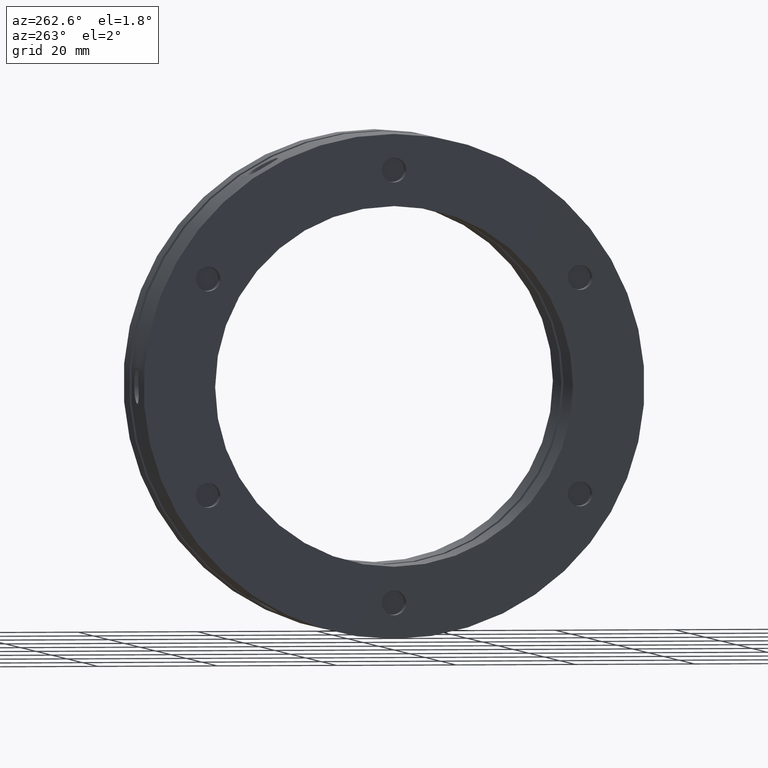
[diagram: clean part render]
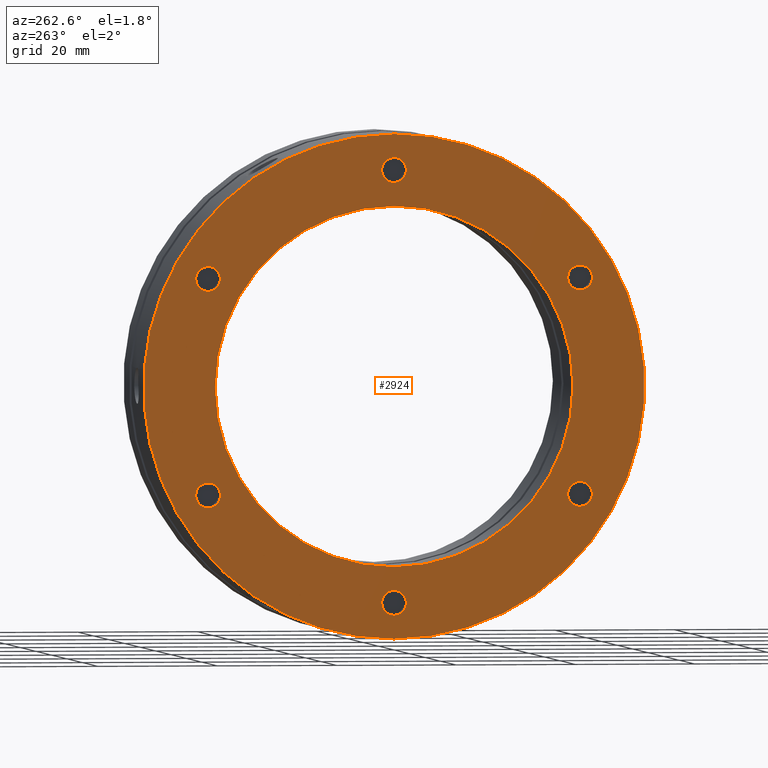
[diagram: same view with one face highlighted and labeled with its STEP entity id]
A machine part, auxiliary view. The second image highlights one B-rep face of the part: STEP entity #2924.
In plain terms, the highlighted planar face has unit normal (-1, 0, 0).
Its self-contained STEP definition (entity closure, byte-faithful):
#13 = VERTEX_POINT ( 'NONE', #3022 ) ;
#14 = VERTEX_POINT ( 'NONE', #3023 ) ;
#16 = VERTEX_POINT ( 'NONE', #3025 ) ;
#85 = VERTEX_POINT ( 'NONE', #3044 ) ;
#90 = VERTEX_POINT ( 'NONE', #3051 ) ;
#100 = VERTEX_POINT ( 'NONE', #3060 ) ;
#129 = CARTESIAN_POINT ( 'NONE',  ( -1.387778780781445700E-014, 0.0000000000000000000, 0.0000000000000000000 ) ) ;
#130 = DIRECTION ( 'NONE',  ( 1.000000000000000000, 0.0000000000000000000, 0.0000000000000000000 ) ) ;
#131 = DIRECTION ( 'NONE',  ( 0.0000000000000000000, 0.0000000000000000000, -1.000000000000000000 ) ) ;
#139 = CARTESIAN_POINT ( 'NONE',  ( -1.127570259384924600E-014, 31.17691453623983500, 17.99999999999998900 ) ) ;
#140 = DIRECTION ( 'NONE',  ( 1.000000000000000000, -0.0000000000000000000, -0.0000000000000000000 ) ) ;
#141 = DIRECTION ( 'NONE',  ( 0.0000000000000000000, 0.0000000000000000000, 1.000000000000000000 ) ) ;
#142 = CARTESIAN_POINT ( 'NONE',  ( -1.127570259384924600E-014, 31.17691453623979900, -18.00000000000002800 ) ) ;
#143 = DIRECTION ( 'NONE',  ( 1.000000000000000000, -0.0000000000000000000, -0.0000000000000000000 ) ) ;
#144 = DIRECTION ( 'NONE',  ( 0.0000000000000000000, 0.0000000000000000000, 1.000000000000000000 ) ) ;
#145 = CARTESIAN_POINT ( 'NONE',  ( -1.127570259384924600E-014, -6.661337999999999900E-015, -36.00000000000002800 ) ) ;
#146 = DIRECTION ( 'NONE',  ( 1.000000000000000000, -0.0000000000000000000, -0.0000000000000000000 ) ) ;
#147 = DIRECTION ( 'NONE',  ( 0.0000000000000000000, 0.0000000000000000000, 1.000000000000000000 ) ) ;
#148 = CARTESIAN_POINT ( 'NONE',  ( -1.127570259384924600E-014, -31.17691453623981700, -18.00000000000000700 ) ) ;
#149 = DIRECTION ( 'NONE',  ( 1.000000000000000000, -0.0000000000000000000, -0.0000000000000000000 ) ) ;
#150 = DIRECTION ( 'NONE',  ( 0.0000000000000000000, 0.0000000000000000000, 1.000000000000000000 ) ) ;
#151 = CARTESIAN_POINT ( 'NONE',  ( -1.127570259384924600E-014, -31.17691453623980600, 18.00000000000001400 ) ) ;
#152 = DIRECTION ( 'NONE',  ( 1.000000000000000000, -0.0000000000000000000, -0.0000000000000000000 ) ) ;
#153 = DIRECTION ( 'NONE',  ( 0.0000000000000000000, 0.0000000000000000000, 1.000000000000000000 ) ) ;
#157 = CARTESIAN_POINT ( 'NONE',  ( -1.127570259384924600E-014, 0.0000000000000000000, 36.00000000000002800 ) ) ;
#158 = DIRECTION ( 'NONE',  ( 1.000000000000000000, -0.0000000000000000000, -0.0000000000000000000 ) ) ;
#159 = DIRECTION ( 'NONE',  ( 0.0000000000000000000, 0.0000000000000000000, 1.000000000000000000 ) ) ;
#161 = CARTESIAN_POINT ( 'NONE',  ( -8.673617379884035500E-015, 0.0000000000000000000, 0.0000000000000000000 ) ) ;
#162 = DIRECTION ( 'NONE',  ( 1.000000000000000000, 0.0000000000000000000, 0.0000000000000000000 ) ) ;
#163 = DIRECTION ( 'NONE',  ( 0.0000000000000000000, 0.0000000000000000000, -1.000000000000000000 ) ) ;
#268 = CARTESIAN_POINT ( 'NONE',  ( -1.387778780781445700E-014, 0.0000000000000000000, 0.0000000000000000000 ) ) ;
#269 = DIRECTION ( 'NONE',  ( 1.000000000000000000, 0.0000000000000000000, 0.0000000000000000000 ) ) ;
#270 = DIRECTION ( 'NONE',  ( 0.0000000000000000000, 0.0000000000000000000, -1.000000000000000000 ) ) ;
#314 = CARTESIAN_POINT ( 'NONE',  ( -1.127570259384924600E-014, 31.17691453623979900, -18.00000000000002800 ) ) ;
#315 = DIRECTION ( 'NONE',  ( 1.000000000000000000, -0.0000000000000000000, -0.0000000000000000000 ) ) ;
#316 = DIRECTION ( 'NONE',  ( 0.0000000000000000000, 0.0000000000000000000, 1.000000000000000000 ) ) ;
#349 = CARTESIAN_POINT ( 'NONE',  ( -1.127570259384924600E-014, 31.17691453623983500, 17.99999999999998900 ) ) ;
#350 = DIRECTION ( 'NONE',  ( 1.000000000000000000, -0.0000000000000000000, -0.0000000000000000000 ) ) ;
#351 = DIRECTION ( 'NONE',  ( 0.0000000000000000000, 0.0000000000000000000, 1.000000000000000000 ) ) ;
#376 = CARTESIAN_POINT ( 'NONE',  ( -1.127570259384924600E-014, -31.17691453623981700, -18.00000000000000700 ) ) ;
#377 = DIRECTION ( 'NONE',  ( 1.000000000000000000, -0.0000000000000000000, -0.0000000000000000000 ) ) ;
#378 = DIRECTION ( 'NONE',  ( 0.0000000000000000000, 0.0000000000000000000, 1.000000000000000000 ) ) ;
#1155 = AXIS2_PLACEMENT_3D ( 'NONE', #3329, #3330, #3331 ) ;
#1205 = AXIS2_PLACEMENT_3D ( 'NONE', #3668, #3669, #3670 ) ;
#1206 = AXIS2_PLACEMENT_3D ( 'NONE', #3671, #3672, #3673 ) ;
#1490 = EDGE_CURVE ( 'NONE', #2796, #14, #2057, .T. ) ;
#1509 = EDGE_CURVE ( 'NONE', #2789, #2788, #2088, .T. ) ;
#1539 = AXIS2_PLACEMENT_3D ( 'NONE', #4133, #4136, #4142 ) ;
#1575 = AXIS2_PLACEMENT_3D ( 'NONE', #129, #130, #131 ) ;
#1578 = AXIS2_PLACEMENT_3D ( 'NONE', #139, #140, #141 ) ;
#1579 = AXIS2_PLACEMENT_3D ( 'NONE', #142, #143, #144 ) ;
#1580 = AXIS2_PLACEMENT_3D ( 'NONE', #145, #146, #147 ) ;
#1581 = AXIS2_PLACEMENT_3D ( 'NONE', #148, #149, #150 ) ;
#1582 = AXIS2_PLACEMENT_3D ( 'NONE', #151, #152, #153 ) ;
#1584 = AXIS2_PLACEMENT_3D ( 'NONE', #157, #158, #159 ) ;
#1585 = AXIS2_PLACEMENT_3D ( 'NONE', #161, #162, #163 ) ;
#1587 = AXIS2_PLACEMENT_3D ( 'NONE', #268, #269, #270 ) ;
#1769 = ORIENTED_EDGE ( 'NONE', *, *, #4606, .F. ) ;
#1770 = ORIENTED_EDGE ( 'NONE', *, *, #4527, .F. ) ;
#1771 = ORIENTED_EDGE ( 'NONE', *, *, #4594, .T. ) ;
#1772 = ORIENTED_EDGE ( 'NONE', *, *, #4701, .T. ) ;
#1773 = ORIENTED_EDGE ( 'NONE', *, *, #4595, .T. ) ;
#1774 = ORIENTED_EDGE ( 'NONE', *, *, #4687, .T. ) ;
#1775 = ORIENTED_EDGE ( 'NONE', *, *, #4596, .T. ) ;
#1776 = ORIENTED_EDGE ( 'NONE', *, *, #2774, .T. ) ;
#1777 = ORIENTED_EDGE ( 'NONE', *, *, #4597, .T. ) ;
#1778 = ORIENTED_EDGE ( 'NONE', *, *, #4714, .T. ) ;
#1779 = ORIENTED_EDGE ( 'NONE', *, *, #4598, .T. ) ;
#1780 = ORIENTED_EDGE ( 'NONE', *, *, #1509, .T. ) ;
#1781 = ORIENTED_EDGE ( 'NONE', *, *, #4600, .T. ) ;
#1782 = ORIENTED_EDGE ( 'NONE', *, *, #2775, .T. ) ;
#1783 = ORIENTED_EDGE ( 'NONE', *, *, #1490, .T. ) ;
#1784 = ORIENTED_EDGE ( 'NONE', *, *, #4601, .T. ) ;
#2057 = CIRCLE ( 'NONE', #3005, 30.00000000000000000 ) ;
#2088 = CIRCLE ( 'NONE', #1155, 2.066999999999999300 ) ;
#2234 = CIRCLE ( 'NONE', #1205, 2.066999999999999300 ) ;
#2236 = CIRCLE ( 'NONE', #1206, 2.066999999999999300 ) ;
#2493 = FACE_BOUND ( 'NONE', #4756, .T. ) ;
#2498 = FACE_BOUND ( 'NONE', #4752, .T. ) ;
#2499 = FACE_BOUND ( 'NONE', #4755, .T. ) ;
#2500 = FACE_BOUND ( 'NONE', #4757, .T. ) ;
#2502 = FACE_BOUND ( 'NONE', #4758, .T. ) ;
#2503 = FACE_BOUND ( 'NONE', #4751, .T. ) ;
#2504 = FACE_BOUND ( 'NONE', #4750, .T. ) ;
#2505 = FACE_OUTER_BOUND ( 'NONE', #4749, .T. ) ;
#2593 = CIRCLE ( 'NONE', #1575, 41.99999999999999300 ) ;
#2599 = CIRCLE ( 'NONE', #1578, 2.066999999999999300 ) ;
#2601 = CIRCLE ( 'NONE', #1579, 2.066999999999999300 ) ;
#2602 = CIRCLE ( 'NONE', #1580, 2.066999999999999300 ) ;
#2603 = CIRCLE ( 'NONE', #1582, 2.066999999999999300 ) ;
#2604 = CIRCLE ( 'NONE', #1581, 2.066999999999999300 ) ;
#2607 = CIRCLE ( 'NONE', #1584, 2.066999999999999300 ) ;
#2608 = CIRCLE ( 'NONE', #1585, 30.00000000000000000 ) ;
#2611 = CIRCLE ( 'NONE', #1587, 41.99999999999999300 ) ;
#2624 = CIRCLE ( 'NONE', #4533, 2.066999999999999300 ) ;
#2638 = CIRCLE ( 'NONE', #4538, 2.066999999999999300 ) ;
#2667 = CIRCLE ( 'NONE', #4539, 2.066999999999999300 ) ;
#2774 = EDGE_CURVE ( 'NONE', #2791, #2787, #2234, .T. ) ;
#2775 = EDGE_CURVE ( 'NONE', #2810, #2807, #2236, .T. ) ;
#2787 = VERTEX_POINT ( 'NONE', #3760 ) ;
#2788 = VERTEX_POINT ( 'NONE', #3752 ) ;
#2789 = VERTEX_POINT ( 'NONE', #3761 ) ;
#2791 = VERTEX_POINT ( 'NONE', #3762 ) ;
#2796 = VERTEX_POINT ( 'NONE', #3767 ) ;
#2797 = VERTEX_POINT ( 'NONE', #3768 ) ;
#2800 = VERTEX_POINT ( 'NONE', #3771 ) ;
#2806 = VERTEX_POINT ( 'NONE', #3777 ) ;
#2807 = VERTEX_POINT ( 'NONE', #3778 ) ;
#2810 = VERTEX_POINT ( 'NONE', #3781 ) ;
#2924 = ADVANCED_FACE ( 'NONE', ( #2498, #2502, #2499, #2493, #2500, #2503, #2504, #2505 ), #4140, .T. ) ;
#3005 = AXIS2_PLACEMENT_3D ( 'NONE', #3284, #3285, #3286 ) ;
#3022 = CARTESIAN_POINT ( 'NONE',  ( -1.387778780781445700E-014, 5.143516556418882500E-015, 41.99999999999999300 ) ) ;
#3023 = CARTESIAN_POINT ( 'NONE',  ( -8.673617379884035500E-015, 0.0000000000000000000, -30.00000000000000000 ) ) ;
#3025 = CARTESIAN_POINT ( 'NONE',  ( -1.387778780781445700E-014, 0.0000000000000000000, -41.99999999999999300 ) ) ;
#3044 = CARTESIAN_POINT ( 'NONE',  ( -1.127570259384924600E-014, 31.17691453623983500, 15.93299999999998900 ) ) ;
#3051 = CARTESIAN_POINT ( 'NONE',  ( -1.127570259384924600E-014, 31.17691453623979900, -20.06700000000002900 ) ) ;
#3060 = CARTESIAN_POINT ( 'NONE',  ( -1.127570259384924600E-014, 31.17691453623983500, 20.06699999999998600 ) ) ;
#3284 = CARTESIAN_POINT ( 'NONE',  ( -8.673617379884035500E-015, 0.0000000000000000000, 0.0000000000000000000 ) ) ;
#3285 = DIRECTION ( 'NONE',  ( 1.000000000000000000, 0.0000000000000000000, 0.0000000000000000000 ) ) ;
#3286 = DIRECTION ( 'NONE',  ( 0.0000000000000000000, 0.0000000000000000000, -1.000000000000000000 ) ) ;
#3329 = CARTESIAN_POINT ( 'NONE',  ( -1.127570259384924600E-014, -31.17691453623980600, 18.00000000000001400 ) ) ;
#3330 = DIRECTION ( 'NONE',  ( 1.000000000000000000, -0.0000000000000000000, -0.0000000000000000000 ) ) ;
#3331 = DIRECTION ( 'NONE',  ( 0.0000000000000000000, 0.0000000000000000000, 1.000000000000000000 ) ) ;
#3668 = CARTESIAN_POINT ( 'NONE',  ( -1.127570259384924600E-014, -6.661337999999999900E-015, -36.00000000000002800 ) ) ;
#3669 = DIRECTION ( 'NONE',  ( 1.000000000000000000, -0.0000000000000000000, -0.0000000000000000000 ) ) ;
#3670 = DIRECTION ( 'NONE',  ( 0.0000000000000000000, 0.0000000000000000000, 1.000000000000000000 ) ) ;
#3671 = CARTESIAN_POINT ( 'NONE',  ( -1.127570259384924600E-014, 0.0000000000000000000, 36.00000000000002800 ) ) ;
#3672 = DIRECTION ( 'NONE',  ( 1.000000000000000000, -0.0000000000000000000, -0.0000000000000000000 ) ) ;
#3673 = DIRECTION ( 'NONE',  ( 0.0000000000000000000, 0.0000000000000000000, 1.000000000000000000 ) ) ;
#3752 = CARTESIAN_POINT ( 'NONE',  ( -1.127570259384924600E-014, -31.17691453623980600, 15.93300000000001600 ) ) ;
#3760 = CARTESIAN_POINT ( 'NONE',  ( -1.127570259384924600E-014, -6.408203506616242300E-015, -38.06700000000002100 ) ) ;
#3761 = CARTESIAN_POINT ( 'NONE',  ( -1.127570259384924600E-014, -31.17691453623980600, 20.06700000000001400 ) ) ;
#3762 = CARTESIAN_POINT ( 'NONE',  ( -1.127570259384924600E-014, -6.661337999999999900E-015, -33.93300000000002800 ) ) ;
#3767 = CARTESIAN_POINT ( 'NONE',  ( -8.673617379884035500E-015, 3.673940397442059200E-015, 30.00000000000000000 ) ) ;
#3768 = CARTESIAN_POINT ( 'NONE',  ( -1.127570259384924600E-014, -31.17691453623981700, -15.93300000000000700 ) ) ;
#3771 = CARTESIAN_POINT ( 'NONE',  ( -1.127570259384924600E-014, -31.17691453623981700, -20.06700000000000400 ) ) ;
#3777 = CARTESIAN_POINT ( 'NONE',  ( -1.127570259384924600E-014, 31.17691453623979900, -15.93300000000003000 ) ) ;
#3778 = CARTESIAN_POINT ( 'NONE',  ( -1.127570259384924600E-014, 2.531344933837580300E-016, 33.93300000000002800 ) ) ;
#3781 = CARTESIAN_POINT ( 'NONE',  ( -1.127570259384924600E-014, 0.0000000000000000000, 38.06700000000002100 ) ) ;
#4133 = CARTESIAN_POINT ( 'NONE',  ( -1.080694000000000000E-014, 36.00000000000000700, 0.0000000000000000000 ) ) ;
#4136 = DIRECTION ( 'NONE',  ( -1.000000000000000000, 0.0000000000000000000, 0.0000000000000000000 ) ) ;
#4140 = PLANE ( 'NONE',  #1539 ) ;
#4142 = DIRECTION ( 'NONE',  ( 0.0000000000000000000, 0.0000000000000000000, 1.000000000000000000 ) ) ;
#4527 = EDGE_CURVE ( 'NONE', #16, #13, #2593, .T. ) ;
#4533 = AXIS2_PLACEMENT_3D ( 'NONE', #314, #315, #316 ) ;
#4538 = AXIS2_PLACEMENT_3D ( 'NONE', #349, #350, #351 ) ;
#4539 = AXIS2_PLACEMENT_3D ( 'NONE', #376, #377, #378 ) ;
#4594 = EDGE_CURVE ( 'NONE', #85, #100, #2599, .T. ) ;
#4595 = EDGE_CURVE ( 'NONE', #90, #2806, #2601, .T. ) ;
#4596 = EDGE_CURVE ( 'NONE', #2787, #2791, #2602, .T. ) ;
#4597 = EDGE_CURVE ( 'NONE', #2800, #2797, #2604, .T. ) ;
#4598 = EDGE_CURVE ( 'NONE', #2788, #2789, #2603, .T. ) ;
#4600 = EDGE_CURVE ( 'NONE', #2807, #2810, #2607, .T. ) ;
#4601 = EDGE_CURVE ( 'NONE', #14, #2796, #2608, .T. ) ;
#4606 = EDGE_CURVE ( 'NONE', #13, #16, #2611, .T. ) ;
#4687 = EDGE_CURVE ( 'NONE', #2806, #90, #2624, .T. ) ;
#4701 = EDGE_CURVE ( 'NONE', #100, #85, #2638, .T. ) ;
#4714 = EDGE_CURVE ( 'NONE', #2797, #2800, #2667, .T. ) ;
#4749 = EDGE_LOOP ( 'NONE', ( #1770, #1769 ) ) ;
#4750 = EDGE_LOOP ( 'NONE', ( #1772, #1771 ) ) ;
#4751 = EDGE_LOOP ( 'NONE', ( #1774, #1773 ) ) ;
#4752 = EDGE_LOOP ( 'NONE', ( #1784, #1783 ) ) ;
#4755 = EDGE_LOOP ( 'NONE', ( #1780, #1779 ) ) ;
#4756 = EDGE_LOOP ( 'NONE', ( #1778, #1777 ) ) ;
#4757 = EDGE_LOOP ( 'NONE', ( #1776, #1775 ) ) ;
#4758 = EDGE_LOOP ( 'NONE', ( #1782, #1781 ) ) ;